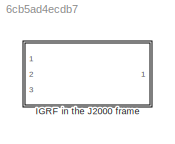
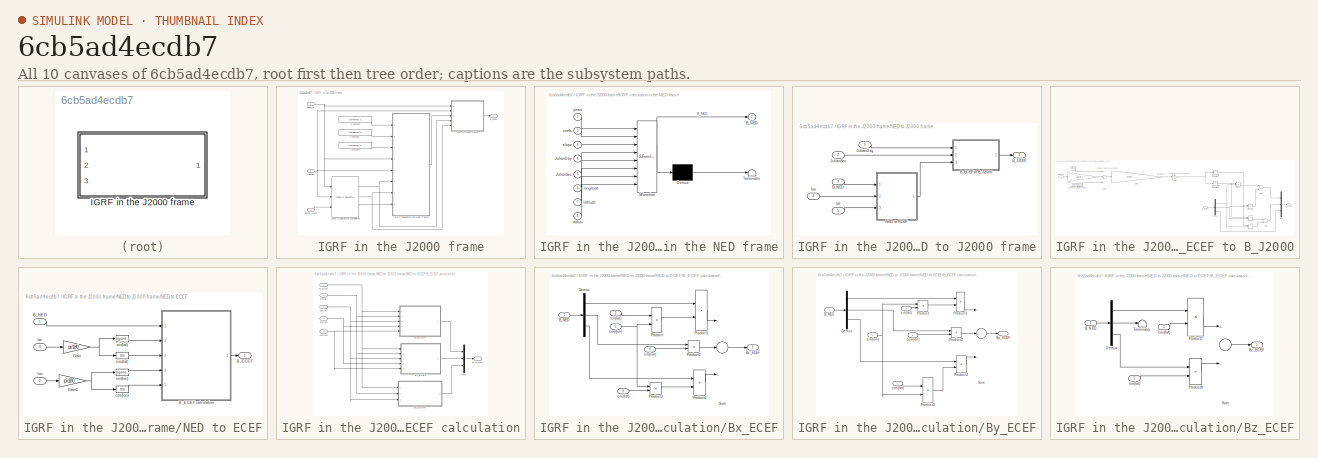
[diagram: thumbnail index - all 10 canvases of the model, root first then tree order]
MODEL slx_6cb5ad4ecdb7
KIND library
BLOCK [SubSystem] IGRF in the J2000 frame
  Ports = [3, 1]
  RequestExecContextInheritance = off
BLOCK [Outport] IGRF in the J2000 frame/B_J2000
  IconDisplay = Port number
BLOCK [Constant] IGRF in the J2000 frame/Constant
  Value = ConfParam.confIGRF.years
BLOCK [Constant] IGRF in the J2000 frame/Constant1
  Value = ConfParam.confIGRF.coefs
BLOCK [Constant] IGRF in the J2000 frame/Constant2
  Value = ConfParam.confIGRF.slope
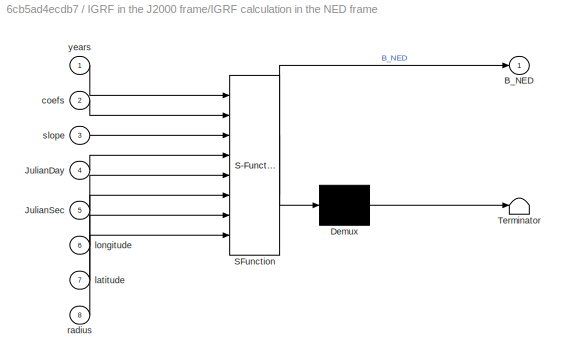
BLOCK [SubSystem] IGRF in the J2000 frame/IGRF calculation in the NED frame
  ErrorFcn = Stateflow.Translate.translate
  PermitHierarchicalResolution = ExplicitOnly
  Ports = [8, 1]
  RequestExecContextInheritance = off
  SFBlockType = MATLAB Function
  TreatAsAtomicUnit = on
BLOCK [Demux] IGRF in the J2000 frame/IGRF calculation in the NED frame/ Demux 
  Outputs = 1
  Ports = [1, 1]
BLOCK [S-Function] IGRF in the J2000 frame/IGRF calculation in the NED frame/ SFunction 
  EnableBusSupport = on
  FunctionName = sf_sfun
  PortCounts = [8 2]
  Ports = [8, 2]
  Tag = Stateflow S-Function IGRF 3
BLOCK [Terminator] IGRF in the J2000 frame/IGRF calculation in the NED frame/ Terminator 
BLOCK [Outport] IGRF in the J2000 frame/IGRF calculation in the NED frame/B_NED
  IconDisplay = Port number
BLOCK [Inport] IGRF in the J2000 frame/IGRF calculation in the NED frame/JulianDay
  IconDisplay = Port number
  Port = 4
BLOCK [Inport] IGRF in the J2000 frame/IGRF calculation in the NED frame/JulianSec
  IconDisplay = Port number
  Port = 5
BLOCK [Inport] IGRF in the J2000 frame/IGRF calculation in the NED frame/coefs
  IconDisplay = Port number
  Port = 2
BLOCK [Inport] IGRF in the J2000 frame/IGRF calculation in the NED frame/latitude
  IconDisplay = Port number
  Port = 7
BLOCK [Inport] IGRF in the J2000 frame/IGRF calculation in the NED frame/longitude
  IconDisplay = Port number
  Port = 6
BLOCK [Inport] IGRF in the J2000 frame/IGRF calculation in the NED frame/radius
  IconDisplay = Port number
  Port = 8
BLOCK [Inport] IGRF in the J2000 frame/IGRF calculation in the NED frame/slope
  IconDisplay = Port number
  Port = 3
BLOCK [Inport] IGRF in the J2000 frame/IGRF calculation in the NED frame/years
  IconDisplay = Port number
BLOCK [Reference] IGRF in the J2000 frame/J2000 to geocentric coordinates  REF=J2000toGeoc/J2000 to geocentric coordinates
  Ports = [3, 3]
  SourceBlock = J2000toGeoc/J2000 to geocentric coordinates
  SourceType = SubSystem
BLOCK [Inport] IGRF in the J2000 frame/JulianDay
  IconDisplay = Port number
BLOCK [Inport] IGRF in the J2000 frame/JulianSec
  IconDisplay = Port number
  Port = 2
BLOCK [SubSystem] IGRF in the J2000 frame/NED to J2000 frame
  Ports = [5, 1]
  RequestExecContextInheritance = off
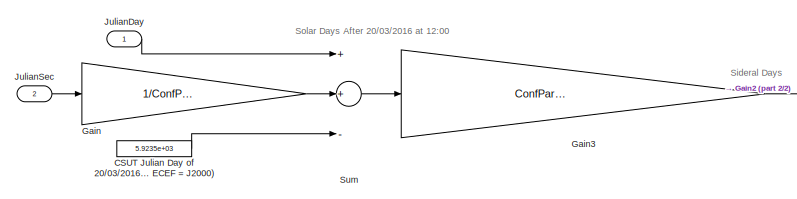
[diagram: IGRF in the J2000 frame/NED to J2000 frame/B_ECEF to B_J2000 - part 1/2, top left region]
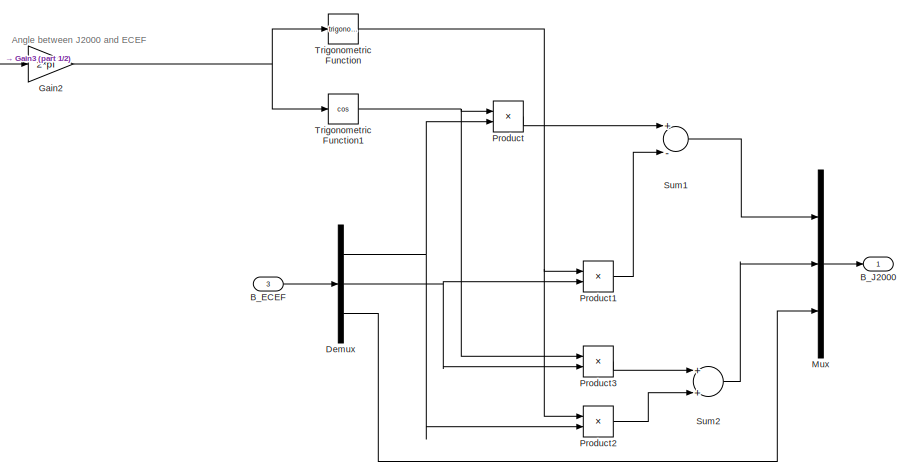
[diagram: IGRF in the J2000 frame/NED to J2000 frame/B_ECEF to B_J2000 - part 2/2, right side, full height]
BLOCK [SubSystem] IGRF in the J2000 frame/NED to J2000 frame/B_ECEF to B_J2000
  Ports = [3, 1]
  RequestExecContextInheritance = off
BLOCK [Inport] IGRF in the J2000 frame/NED to J2000 frame/B_ECEF to B_J2000/B_ECEF
  IconDisplay = Port number
  Port = 3
BLOCK [Outport] IGRF in the J2000 frame/NED to J2000 frame/B_ECEF to B_J2000/B_J2000
  IconDisplay = Port number
BLOCK [Constant] IGRF in the J2000 frame/NED to J2000 frame/B_ECEF to B_J2000/CSUT Julian Day of 20//03//2016 at 12:00 UTC (moment in which ECEF = J2000)
  Value = 5.9235e+03
BLOCK [Demux] IGRF in the J2000 frame/NED to J2000 frame/B_ECEF to B_J2000/Demux
  DisplayOption = bar
  Outputs = 3
  Ports = [1, 3]
BLOCK [Gain] IGRF in the J2000 frame/NED to J2000 frame/B_ECEF to B_J2000/Gain
  Gain = 1/ConfParam.confConst.SolarDay
  OutDataTypeStr = Inherit: Inherit via internal rule
  ParamDataTypeStr = Inherit: Inherit via internal rule
  SaturateOnIntegerOverflow = off
BLOCK [Gain] IGRF in the J2000 frame/NED to J2000 frame/B_ECEF to B_J2000/Gain2
  Gain = 2*pi
  OutDataTypeStr = Inherit: Inherit via internal rule
  ParamDataTypeStr = Inherit: Inherit via internal rule
  SaturateOnIntegerOverflow = off
BLOCK [Gain] IGRF in the J2000 frame/NED to J2000 frame/B_ECEF to B_J2000/Gain3
  Gain = ConfParam.confConst.SolarDay/ConfParam.confConst.SideralDay
  OutDataTypeStr = Inherit: Inherit via internal rule
  ParamDataTypeStr = Inherit: Inherit via internal rule
  SaturateOnIntegerOverflow = off
BLOCK [Inport] IGRF in the J2000 frame/NED to J2000 frame/B_ECEF to B_J2000/JulianDay
  IconDisplay = Port number
BLOCK [Inport] IGRF in the J2000 frame/NED to J2000 frame/B_ECEF to B_J2000/JulianSec
  IconDisplay = Port number
  Port = 2
BLOCK [Mux] IGRF in the J2000 frame/NED to J2000 frame/B_ECEF to B_J2000/Mux
  DisplayOption = bar
  Inputs = 3
  Ports = [3, 1]
BLOCK [Product] IGRF in the J2000 frame/NED to J2000 frame/B_ECEF to B_J2000/Product
  InputSameDT = off
  OutDataTypeStr = Inherit: Inherit via internal rule
  Ports = [2, 1]
  RndMeth = Floor
  SaturateOnIntegerOverflow = off
BLOCK [Product] IGRF in the J2000 frame/NED to J2000 frame/B_ECEF to B_J2000/Product1
  InputSameDT = off
  OutDataTypeStr = Inherit: Inherit via internal rule
  Ports = [2, 1]
  RndMeth = Floor
  SaturateOnIntegerOverflow = off
BLOCK [Product] IGRF in the J2000 frame/NED to J2000 frame/B_ECEF to B_J2000/Product2
  InputSameDT = off
  OutDataTypeStr = Inherit: Inherit via internal rule
  Ports = [2, 1]
  RndMeth = Floor
  SaturateOnIntegerOverflow = off
BLOCK [Product] IGRF in the J2000 frame/NED to J2000 frame/B_ECEF to B_J2000/Product3
  InputSameDT = off
  OutDataTypeStr = Inherit: Inherit via internal rule
  Ports = [2, 1]
  RndMeth = Floor
  SaturateOnIntegerOverflow = off
BLOCK [Sum] IGRF in the J2000 frame/NED to J2000 frame/B_ECEF to B_J2000/Sum
  InputSameDT = off
  Inputs = ++-
  OutDataTypeStr = Inherit: Inherit via internal rule
  Ports = [3, 1]
  SaturateOnIntegerOverflow = off
BLOCK [Sum] IGRF in the J2000 frame/NED to J2000 frame/B_ECEF to B_J2000/Sum1
  InputSameDT = off
  Inputs = +-
  OutDataTypeStr = Inherit: Inherit via internal rule
  Ports = [2, 1]
  SaturateOnIntegerOverflow = off
BLOCK [Sum] IGRF in the J2000 frame/NED to J2000 frame/B_ECEF to B_J2000/Sum2
  InputSameDT = off
  OutDataTypeStr = Inherit: Inherit via internal rule
  Ports = [2, 1]
  SaturateOnIntegerOverflow = off
BLOCK [Trigonometry] IGRF in the J2000 frame/NED to J2000 frame/B_ECEF to B_J2000/Trigonometric Function
  Ports = [1, 1]
BLOCK [Trigonometry] IGRF in the J2000 frame/NED to J2000 frame/B_ECEF to B_J2000/Trigonometric Function1
  Operator = cos
  Ports = [1, 1]
BLOCK [Outport] IGRF in the J2000 frame/NED to J2000 frame/B_J2000
  IconDisplay = Port number
BLOCK [Inport] IGRF in the J2000 frame/NED to J2000 frame/B_NED
  IconDisplay = Port number
  Port = 3
BLOCK [Inport] IGRF in the J2000 frame/NED to J2000 frame/JulianDay
  IconDisplay = Port number
BLOCK [Inport] IGRF in the J2000 frame/NED to J2000 frame/JulianSec
  IconDisplay = Port number
  Port = 2
BLOCK [SubSystem] IGRF in the J2000 frame/NED to J2000 frame/NED to ECEF
  Ports = [3, 1]
  RequestExecContextInheritance = off
BLOCK [Outport] IGRF in the J2000 frame/NED to J2000 frame/NED to ECEF/B_ECEF
  IconDisplay = Port number
BLOCK [SubSystem] IGRF in the J2000 frame/NED to J2000 frame/NED to ECEF/B_ECEF calculation
  Ports = [5, 1]
  RequestExecContextInheritance = off
BLOCK [Outport] IGRF in the J2000 frame/NED to J2000 frame/NED to ECEF/B_ECEF calculation/B_ECEF
  IconDisplay = Port number
BLOCK [Inport] IGRF in the J2000 frame/NED to J2000 frame/NED to ECEF/B_ECEF calculation/B_NED
  IconDisplay = Port number
BLOCK [SubSystem] IGRF in the J2000 frame/NED to J2000 frame/NED to ECEF/B_ECEF calculation/Bx_ECEF
  Ports = [5, 1]
  RequestExecContextInheritance = off
BLOCK [Inport] IGRF in the J2000 frame/NED to J2000 frame/NED to ECEF/B_ECEF calculation/Bx_ECEF/B_NED
  IconDisplay = Port number
BLOCK [Outport] IGRF in the J2000 frame/NED to J2000 frame/NED to ECEF/B_ECEF calculation/Bx_ECEF/Bx_ECEF
  IconDisplay = Port number
BLOCK [Demux] IGRF in the J2000 frame/NED to J2000 frame/NED to ECEF/B_ECEF calculation/Bx_ECEF/Demux
  DisplayOption = bar
  Outputs = 3
  Ports = [1, 3]
BLOCK [Product] IGRF in the J2000 frame/NED to J2000 frame/NED to ECEF/B_ECEF calculation/Bx_ECEF/Product
  InputSameDT = off
  OutDataTypeStr = Inherit: Inherit via internal rule
  Ports = [2, 1]
  RndMeth = Floor
  SaturateOnIntegerOverflow = off
BLOCK [Product] IGRF in the J2000 frame/NED to J2000 frame/NED to ECEF/B_ECEF calculation/Bx_ECEF/Product1
  InputSameDT = off
  OutDataTypeStr = Inherit: Inherit via internal rule
  Ports = [2, 1]
  RndMeth = Floor
  SaturateOnIntegerOverflow = off
BLOCK [Product] IGRF in the J2000 frame/NED to J2000 frame/NED to ECEF/B_ECEF calculation/Bx_ECEF/Product2
  InputSameDT = off
  OutDataTypeStr = Inherit: Inherit via internal rule
  Ports = [2, 1]
  RndMeth = Floor
  SaturateOnIntegerOverflow = off
BLOCK [Product] IGRF in the J2000 frame/NED to J2000 frame/NED to ECEF/B_ECEF calculation/Bx_ECEF/Product3
  InputSameDT = off
  OutDataTypeStr = Inherit: Inherit via internal rule
  Ports = [2, 1]
  RndMeth = Floor
  SaturateOnIntegerOverflow = off
BLOCK [Product] IGRF in the J2000 frame/NED to J2000 frame/NED to ECEF/B_ECEF calculation/Bx_ECEF/Product4
  InputSameDT = off
  OutDataTypeStr = Inherit: Inherit via internal rule
  Ports = [2, 1]
  RndMeth = Floor
  SaturateOnIntegerOverflow = off
BLOCK [Sum] IGRF in the J2000 frame/NED to J2000 frame/NED to ECEF/B_ECEF calculation/Bx_ECEF/Sum
  InputSameDT = off
  Inputs = ---
  OutDataTypeStr = Inherit: Inherit via internal rule
  Ports = [3, 1]
  SaturateOnIntegerOverflow = off
BLOCK [Inport] IGRF in the J2000 frame/NED to J2000 frame/NED to ECEF/B_ECEF calculation/Bx_ECEF/cos(lat)
  IconDisplay = Port number
  Port = 3
BLOCK [Inport] IGRF in the J2000 frame/NED to J2000 frame/NED to ECEF/B_ECEF calculation/Bx_ECEF/cos(lon)
  IconDisplay = Port number
  Port = 5
BLOCK [Inport] IGRF in the J2000 frame/NED to J2000 frame/NED to ECEF/B_ECEF calculation/Bx_ECEF/sin(lat)
  IconDisplay = Port number
  Port = 2
BLOCK [Inport] IGRF in the J2000 frame/NED to J2000 frame/NED to ECEF/B_ECEF calculation/Bx_ECEF/sin(lon)
  IconDisplay = Port number
  Port = 4
BLOCK [SubSystem] IGRF in the J2000 frame/NED to J2000 frame/NED to ECEF/B_ECEF calculation/By_ECEF
  Ports = [5, 1]
  RequestExecContextInheritance = off
BLOCK [Inport] IGRF in the J2000 frame/NED to J2000 frame/NED to ECEF/B_ECEF calculation/By_ECEF/B_NED
  IconDisplay = Port number
BLOCK [Outport] IGRF in the J2000 frame/NED to J2000 frame/NED to ECEF/B_ECEF calculation/By_ECEF/By_ECEF
  IconDisplay = Port number
BLOCK [Demux] IGRF in the J2000 frame/NED to J2000 frame/NED to ECEF/B_ECEF calculation/By_ECEF/Demux
  DisplayOption = bar
  Outputs = 3
  Ports = [1, 3]
BLOCK [Product] IGRF in the J2000 frame/NED to J2000 frame/NED to ECEF/B_ECEF calculation/By_ECEF/Product
  InputSameDT = off
  OutDataTypeStr = Inherit: Inherit via internal rule
  Ports = [2, 1]
  RndMeth = Floor
  SaturateOnIntegerOverflow = off
BLOCK [Product] IGRF in the J2000 frame/NED to J2000 frame/NED to ECEF/B_ECEF calculation/By_ECEF/Product1
  InputSameDT = off
  OutDataTypeStr = Inherit: Inherit via internal rule
  Ports = [2, 1]
  RndMeth = Floor
  SaturateOnIntegerOverflow = off
BLOCK [Product] IGRF in the J2000 frame/NED to J2000 frame/NED to ECEF/B_ECEF calculation/By_ECEF/Product2
  InputSameDT = off
  OutDataTypeStr = Inherit: Inherit via internal rule
  Ports = [2, 1]
  RndMeth = Floor
  SaturateOnIntegerOverflow = off
BLOCK [Product] IGRF in the J2000 frame/NED to J2000 frame/NED to ECEF/B_ECEF calculation/By_ECEF/Product3
  InputSameDT = off
  OutDataTypeStr = Inherit: Inherit via internal rule
  Ports = [2, 1]
  RndMeth = Floor
  SaturateOnIntegerOverflow = off
BLOCK [Product] IGRF in the J2000 frame/NED to J2000 frame/NED to ECEF/B_ECEF calculation/By_ECEF/Product4
  InputSameDT = off
  OutDataTypeStr = Inherit: Inherit via internal rule
  Ports = [2, 1]
  RndMeth = Floor
  SaturateOnIntegerOverflow = off
BLOCK [Sum] IGRF in the J2000 frame/NED to J2000 frame/NED to ECEF/B_ECEF calculation/By_ECEF/Sum
  InputSameDT = off
  Inputs = -+-
  OutDataTypeStr = Inherit: Inherit via internal rule
  Ports = [3, 1]
  SaturateOnIntegerOverflow = off
BLOCK [Inport] IGRF in the J2000 frame/NED to J2000 frame/NED to ECEF/B_ECEF calculation/By_ECEF/cos(lat)
  IconDisplay = Port number
  Port = 3
BLOCK [Inport] IGRF in the J2000 frame/NED to J2000 frame/NED to ECEF/B_ECEF calculation/By_ECEF/cos(lon)
  IconDisplay = Port number
  Port = 5
BLOCK [Inport] IGRF in the J2000 frame/NED to J2000 frame/NED to ECEF/B_ECEF calculation/By_ECEF/sin(lat)
  IconDisplay = Port number
  Port = 2
BLOCK [Inport] IGRF in the J2000 frame/NED to J2000 frame/NED to ECEF/B_ECEF calculation/By_ECEF/sin(lon)
  IconDisplay = Port number
  Port = 4
BLOCK [SubSystem] IGRF in the J2000 frame/NED to J2000 frame/NED to ECEF/B_ECEF calculation/Bz_ECEF
  Ports = [3, 1]
  RequestExecContextInheritance = off
BLOCK [Inport] IGRF in the J2000 frame/NED to J2000 frame/NED to ECEF/B_ECEF calculation/Bz_ECEF/B_NED
  IconDisplay = Port number
BLOCK [Outport] IGRF in the J2000 frame/NED to J2000 frame/NED to ECEF/B_ECEF calculation/Bz_ECEF/Bz_ECEF
  IconDisplay = Port number
BLOCK [Demux] IGRF in the J2000 frame/NED to J2000 frame/NED to ECEF/B_ECEF calculation/Bz_ECEF/Demux
  DisplayOption = bar
  Outputs = 3
  Ports = [1, 3]
BLOCK [Product] IGRF in the J2000 frame/NED to J2000 frame/NED to ECEF/B_ECEF calculation/Bz_ECEF/Product1
  InputSameDT = off
  OutDataTypeStr = Inherit: Inherit via internal rule
  Ports = [2, 1]
  RndMeth = Floor
  SaturateOnIntegerOverflow = off
BLOCK [Product] IGRF in the J2000 frame/NED to J2000 frame/NED to ECEF/B_ECEF calculation/Bz_ECEF/Product4
  InputSameDT = off
  OutDataTypeStr = Inherit: Inherit via internal rule
  Ports = [2, 1]
  RndMeth = Floor
  SaturateOnIntegerOverflow = off
BLOCK [Sum] IGRF in the J2000 frame/NED to J2000 frame/NED to ECEF/B_ECEF calculation/Bz_ECEF/Sum
  InputSameDT = off
  Inputs = +-
  OutDataTypeStr = Inherit: Inherit via internal rule
  Ports = [2, 1]
  SaturateOnIntegerOverflow = off
BLOCK [Terminator] IGRF in the J2000 frame/NED to J2000 frame/NED to ECEF/B_ECEF calculation/Bz_ECEF/Terminator
BLOCK [Inport] IGRF in the J2000 frame/NED to J2000 frame/NED to ECEF/B_ECEF calculation/Bz_ECEF/cos(lat)
  IconDisplay = Port number
  Port = 3
BLOCK [Inport] IGRF in the J2000 frame/NED to J2000 frame/NED to ECEF/B_ECEF calculation/Bz_ECEF/sin(lat)
  IconDisplay = Port number
  Port = 2
BLOCK [Mux] IGRF in the J2000 frame/NED to J2000 frame/NED to ECEF/B_ECEF calculation/Mux
  DisplayOption = bar
  Inputs = 3
  Ports = [3, 1]
BLOCK [Inport] IGRF in the J2000 frame/NED to J2000 frame/NED to ECEF/B_ECEF calculation/cos(lat)
  IconDisplay = Port number
  Port = 3
BLOCK [Inport] IGRF in the J2000 frame/NED to J2000 frame/NED to ECEF/B_ECEF calculation/cos(lon)
  IconDisplay = Port number
  Port = 5
BLOCK [Inport] IGRF in the J2000 frame/NED to J2000 frame/NED to ECEF/B_ECEF calculation/sin(lat)
  IconDisplay = Port number
  Port = 2
BLOCK [Inport] IGRF in the J2000 frame/NED to J2000 frame/NED to ECEF/B_ECEF calculation/sin(lon)
  IconDisplay = Port number
  Port = 4
BLOCK [Inport] IGRF in the J2000 frame/NED to J2000 frame/NED to ECEF/B_NED
  IconDisplay = Port number
BLOCK [Gain] IGRF in the J2000 frame/NED to J2000 frame/NED to ECEF/Gain
  Gain = pi/180
  OutDataTypeStr = Inherit: Inherit via internal rule
  ParamDataTypeStr = Inherit: Inherit via internal rule
  SaturateOnIntegerOverflow = off
BLOCK [Gain] IGRF in the J2000 frame/NED to J2000 frame/NED to ECEF/Gain1
  Gain = pi/180
  OutDataTypeStr = Inherit: Inherit via internal rule
  ParamDataTypeStr = Inherit: Inherit via internal rule
  SaturateOnIntegerOverflow = off
BLOCK [Trigonometry] IGRF in the J2000 frame/NED to J2000 frame/NED to ECEF/cos(lat)
  Operator = cos
  Ports = [1, 1]
BLOCK [Trigonometry] IGRF in the J2000 frame/NED to J2000 frame/NED to ECEF/cos(lon)
  Operator = cos
  Ports = [1, 1]
BLOCK [Inport] IGRF in the J2000 frame/NED to J2000 frame/NED to ECEF/lat
  IconDisplay = Port number
  Port = 3
BLOCK [Inport] IGRF in the J2000 frame/NED to J2000 frame/NED to ECEF/lon
  IconDisplay = Port number
  Port = 2
BLOCK [Trigonometry] IGRF in the J2000 frame/NED to J2000 frame/NED to ECEF/sin(lat)
  Ports = [1, 1]
BLOCK [Trigonometry] IGRF in the J2000 frame/NED to J2000 frame/NED to ECEF/sin(lon)
  Ports = [1, 1]
BLOCK [Inport] IGRF in the J2000 frame/NED to J2000 frame/lat
  IconDisplay = Port number
  Port = 5
BLOCK [Inport] IGRF in the J2000 frame/NED to J2000 frame/lon
  IconDisplay = Port number
  Port = 4
BLOCK [Inport] IGRF in the J2000 frame/SatPos_J2000
  IconDisplay = Port number
  Port = 3
ANNOTATION IGRF in the J2000 frame/NED to J2000 frame/B_ECEF to B_J2000: Angle between J2000 and ECEF
ANNOTATION IGRF in the J2000 frame/NED to J2000 frame/B_ECEF to B_J2000: Sideral Days
ANNOTATION IGRF in the J2000 frame/NED to J2000 frame/B_ECEF to B_J2000: Solar Days After 20/03/2016 at 12:00
LINE IGRF in the J2000 frame/Constant1:1 -> IGRF in the J2000 frame/IGRF calculation in the NED frame:2
LINE IGRF in the J2000 frame/Constant2:1 -> IGRF in the J2000 frame/IGRF calculation in the NED frame:3
LINE IGRF in the J2000 frame/Constant:1 -> IGRF in the J2000 frame/IGRF calculation in the NED frame:1
LINE IGRF in the J2000 frame/IGRF calculation in the NED frame:1 -> IGRF in the J2000 frame/NED to J2000 frame:3
NET IGRF in the J2000 frame/J2000 to geocentric coordinates:1 -> IGRF in the J2000 frame/IGRF calculation in the NED frame:6, IGRF in the J2000 frame/NED to J2000 frame:4
NET IGRF in the J2000 frame/J2000 to geocentric coordinates:2 -> IGRF in the J2000 frame/IGRF calculation in the NED frame:7, IGRF in the J2000 frame/NED to J2000 frame:5
LINE IGRF in the J2000 frame/J2000 to geocentric coordinates:3 -> IGRF in the J2000 frame/IGRF calculation in the NED frame:8
NET IGRF in the J2000 frame/JulianDay:1 -> IGRF in the J2000 frame/IGRF calculation in the NED frame:4, IGRF in the J2000 frame/J2000 to geocentric coordinates:1, IGRF in the J2000 frame/NED to J2000 frame:1
NET IGRF in the J2000 frame/JulianSec:1 -> IGRF in the J2000 frame/IGRF calculation in the NED frame:5, IGRF in the J2000 frame/J2000 to geocentric coordinates:2, IGRF in the J2000 frame/NED to J2000 frame:2
LINE IGRF in the J2000 frame/NED to J2000 frame/B_ECEF to B_J2000/B_ECEF:1 -> IGRF in the J2000 frame/NED to J2000 frame/B_ECEF to B_J2000/Demux:1
LINE IGRF in the J2000 frame/NED to J2000 frame/B_ECEF to B_J2000/CSUT Julian Day of 20//03//2016 at 12:00 UTC (moment in which ECEF = J2000):1 -> IGRF in the J2000 frame/NED to J2000 frame/B_ECEF to B_J2000/Sum:3
NET IGRF in the J2000 frame/NED to J2000 frame/B_ECEF to B_J2000/Demux:1 -> IGRF in the J2000 frame/NED to J2000 frame/B_ECEF to B_J2000/Product2:2, IGRF in the J2000 frame/NED to J2000 frame/B_ECEF to B_J2000/Product:2
NET IGRF in the J2000 frame/NED to J2000 frame/B_ECEF to B_J2000/Demux:2 -> IGRF in the J2000 frame/NED to J2000 frame/B_ECEF to B_J2000/Product1:2, IGRF in the J2000 frame/NED to J2000 frame/B_ECEF to B_J2000/Product3:2
LINE IGRF in the J2000 frame/NED to J2000 frame/B_ECEF to B_J2000/Demux:3 -> IGRF in the J2000 frame/NED to J2000 frame/B_ECEF to B_J2000/Mux:3
NET IGRF in the J2000 frame/NED to J2000 frame/B_ECEF to B_J2000/Gain2:1 -> IGRF in the J2000 frame/NED to J2000 frame/B_ECEF to B_J2000/Trigonometric Function1:1, IGRF in the J2000 frame/NED to J2000 frame/B_ECEF to B_J2000/Trigonometric Function:1
LINE IGRF in the J2000 frame/NED to J2000 frame/B_ECEF to B_J2000/Gain3:1 -> IGRF in the J2000 frame/NED to J2000 frame/B_ECEF to B_J2000/Gain2:1
LINE IGRF in the J2000 frame/NED to J2000 frame/B_ECEF to B_J2000/Gain:1 -> IGRF in the J2000 frame/NED to J2000 frame/B_ECEF to B_J2000/Sum:2
LINE IGRF in the J2000 frame/NED to J2000 frame/B_ECEF to B_J2000/JulianDay:1 -> IGRF in the J2000 frame/NED to J2000 frame/B_ECEF to B_J2000/Sum:1
LINE IGRF in the J2000 frame/NED to J2000 frame/B_ECEF to B_J2000/JulianSec:1 -> IGRF in the J2000 frame/NED to J2000 frame/B_ECEF to B_J2000/Gain:1
LINE IGRF in the J2000 frame/NED to J2000 frame/B_ECEF to B_J2000/Mux:1 -> IGRF in the J2000 frame/NED to J2000 frame/B_ECEF to B_J2000/B_J2000:1
LINE IGRF in the J2000 frame/NED to J2000 frame/B_ECEF to B_J2000/Product1:1 -> IGRF in the J2000 frame/NED to J2000 frame/B_ECEF to B_J2000/Sum1:2
LINE IGRF in the J2000 frame/NED to J2000 frame/B_ECEF to B_J2000/Product2:1 -> IGRF in the J2000 frame/NED to J2000 frame/B_ECEF to B_J2000/Sum2:2
LINE IGRF in the J2000 frame/NED to J2000 frame/B_ECEF to B_J2000/Product3:1 -> IGRF in the J2000 frame/NED to J2000 frame/B_ECEF to B_J2000/Sum2:1
LINE IGRF in the J2000 frame/NED to J2000 frame/B_ECEF to B_J2000/Product:1 -> IGRF in the J2000 frame/NED to J2000 frame/B_ECEF to B_J2000/Sum1:1
LINE IGRF in the J2000 frame/NED to J2000 frame/B_ECEF to B_J2000/Sum1:1 -> IGRF in the J2000 frame/NED to J2000 frame/B_ECEF to B_J2000/Mux:1
LINE IGRF in the J2000 frame/NED to J2000 frame/B_ECEF to B_J2000/Sum2:1 -> IGRF in the J2000 frame/NED to J2000 frame/B_ECEF to B_J2000/Mux:2
LINE IGRF in the J2000 frame/NED to J2000 frame/B_ECEF to B_J2000/Sum:1 -> IGRF in the J2000 frame/NED to J2000 frame/B_ECEF to B_J2000/Gain3:1
NET IGRF in the J2000 frame/NED to J2000 frame/B_ECEF to B_J2000/Trigonometric Function1:1 -> IGRF in the J2000 frame/NED to J2000 frame/B_ECEF to B_J2000/Product3:1, IGRF in the J2000 frame/NED to J2000 frame/B_ECEF to B_J2000/Product:1
NET IGRF in the J2000 frame/NED to J2000 frame/B_ECEF to B_J2000/Trigonometric Function:1 -> IGRF in the J2000 frame/NED to J2000 frame/B_ECEF to B_J2000/Product1:1, IGRF in the J2000 frame/NED to J2000 frame/B_ECEF to B_J2000/Product2:1
LINE IGRF in the J2000 frame/NED to J2000 frame/B_ECEF to B_J2000:1 -> IGRF in the J2000 frame/NED to J2000 frame/B_J2000:1
LINE IGRF in the J2000 frame/NED to J2000 frame/B_NED:1 -> IGRF in the J2000 frame/NED to J2000 frame/NED to ECEF:1
LINE IGRF in the J2000 frame/NED to J2000 frame/JulianDay:1 -> IGRF in the J2000 frame/NED to J2000 frame/B_ECEF to B_J2000:1
LINE IGRF in the J2000 frame/NED to J2000 frame/JulianSec:1 -> IGRF in the J2000 frame/NED to J2000 frame/B_ECEF to B_J2000:2
NET IGRF in the J2000 frame/NED to J2000 frame/NED to ECEF/B_ECEF calculation/B_NED:1 -> IGRF in the J2000 frame/NED to J2000 frame/NED to ECEF/B_ECEF calculation/Bx_ECEF:1, IGRF in the J2000 frame/NED to J2000 frame/NED to ECEF/B_ECEF calculation/By_ECEF:1, IGRF in the J2000 frame/NED to J2000 frame/NED to ECEF/B_ECEF calculation/Bz_ECEF:1
LINE IGRF in the J2000 frame/NED to J2000 frame/NED to ECEF/B_ECEF calculation/Bx_ECEF/B_NED:1 -> IGRF in the J2000 frame/NED to J2000 frame/NED to ECEF/B_ECEF calculation/Bx_ECEF/Demux:1
LINE IGRF in the J2000 frame/NED to J2000 frame/NED to ECEF/B_ECEF calculation/Bx_ECEF/Demux:1 -> IGRF in the J2000 frame/NED to J2000 frame/NED to ECEF/B_ECEF calculation/Bx_ECEF/Product1:1
LINE IGRF in the J2000 frame/NED to J2000 frame/NED to ECEF/B_ECEF calculation/Bx_ECEF/Demux:2 -> IGRF in the J2000 frame/NED to J2000 frame/NED to ECEF/B_ECEF calculation/Bx_ECEF/Product2:1
LINE IGRF in the J2000 frame/NED to J2000 frame/NED to ECEF/B_ECEF calculation/Bx_ECEF/Demux:3 -> IGRF in the J2000 frame/NED to J2000 frame/NED to ECEF/B_ECEF calculation/Bx_ECEF/Product4:1
LINE IGRF in the J2000 frame/NED to J2000 frame/NED to ECEF/B_ECEF calculation/Bx_ECEF/Product1:1 -> IGRF in the J2000 frame/NED to J2000 frame/NED to ECEF/B_ECEF calculation/Bx_ECEF/Sum:1
LINE IGRF in the J2000 frame/NED to J2000 frame/NED to ECEF/B_ECEF calculation/Bx_ECEF/Product2:1 -> IGRF in the J2000 frame/NED to J2000 frame/NED to ECEF/B_ECEF calculation/Bx_ECEF/Sum:2
LINE IGRF in the J2000 frame/NED to J2000 frame/NED to ECEF/B_ECEF calculation/Bx_ECEF/Product3:1 -> IGRF in the J2000 frame/NED to J2000 frame/NED to ECEF/B_ECEF calculation/Bx_ECEF/Product4:2
LINE IGRF in the J2000 frame/NED to J2000 frame/NED to ECEF/B_ECEF calculation/Bx_ECEF/Product4:1 -> IGRF in the J2000 frame/NED to J2000 frame/NED to ECEF/B_ECEF calculation/Bx_ECEF/Sum:3
LINE IGRF in the J2000 frame/NED to J2000 frame/NED to ECEF/B_ECEF calculation/Bx_ECEF/Product:1 -> IGRF in the J2000 frame/NED to J2000 frame/NED to ECEF/B_ECEF calculation/Bx_ECEF/Product1:2
LINE IGRF in the J2000 frame/NED to J2000 frame/NED to ECEF/B_ECEF calculation/Bx_ECEF/Sum:1 -> IGRF in the J2000 frame/NED to J2000 frame/NED to ECEF/B_ECEF calculation/Bx_ECEF/Bx_ECEF:1
LINE IGRF in the J2000 frame/NED to J2000 frame/NED to ECEF/B_ECEF calculation/Bx_ECEF/cos(lat):1 -> IGRF in the J2000 frame/NED to J2000 frame/NED to ECEF/B_ECEF calculation/Bx_ECEF/Product3:2
NET IGRF in the J2000 frame/NED to J2000 frame/NED to ECEF/B_ECEF calculation/Bx_ECEF/cos(lon):1 -> IGRF in the J2000 frame/NED to J2000 frame/NED to ECEF/B_ECEF calculation/Bx_ECEF/Product3:1, IGRF in the J2000 frame/NED to J2000 frame/NED to ECEF/B_ECEF calculation/Bx_ECEF/Product:2
LINE IGRF in the J2000 frame/NED to J2000 frame/NED to ECEF/B_ECEF calculation/Bx_ECEF/sin(lat):1 -> IGRF in the J2000 frame/NED to J2000 frame/NED to ECEF/B_ECEF calculation/Bx_ECEF/Product:1
LINE IGRF in the J2000 frame/NED to J2000 frame/NED to ECEF/B_ECEF calculation/Bx_ECEF/sin(lon):1 -> IGRF in the J2000 frame/NED to J2000 frame/NED to ECEF/B_ECEF calculation/Bx_ECEF/Product2:2
LINE IGRF in the J2000 frame/NED to J2000 frame/NED to ECEF/B_ECEF calculation/Bx_ECEF:1 -> IGRF in the J2000 frame/NED to J2000 frame/NED to ECEF/B_ECEF calculation/Mux:1
LINE IGRF in the J2000 frame/NED to J2000 frame/NED to ECEF/B_ECEF calculation/By_ECEF/B_NED:1 -> IGRF in the J2000 frame/NED to J2000 frame/NED to ECEF/B_ECEF calculation/By_ECEF/Demux:1
LINE IGRF in the J2000 frame/NED to J2000 frame/NED to ECEF/B_ECEF calculation/By_ECEF/Demux:1 -> IGRF in the J2000 frame/NED to J2000 frame/NED to ECEF/B_ECEF calculation/By_ECEF/Product1:1
LINE IGRF in the J2000 frame/NED to J2000 frame/NED to ECEF/B_ECEF calculation/By_ECEF/Demux:2 -> IGRF in the J2000 frame/NED to J2000 frame/NED to ECEF/B_ECEF calculation/By_ECEF/Product2:1
LINE IGRF in the J2000 frame/NED to J2000 frame/NED to ECEF/B_ECEF calculation/By_ECEF/Demux:3 -> IGRF in the J2000 frame/NED to J2000 frame/NED to ECEF/B_ECEF calculation/By_ECEF/Product4:1
LINE IGRF in the J2000 frame/NED to J2000 frame/NED to ECEF/B_ECEF calculation/By_ECEF/Product1:1 -> IGRF in the J2000 frame/NED to J2000 frame/NED to ECEF/B_ECEF calculation/By_ECEF/Sum:1
LINE IGRF in the J2000 frame/NED to J2000 frame/NED to ECEF/B_ECEF calculation/By_ECEF/Product2:1 -> IGRF in the J2000 frame/NED to J2000 frame/NED to ECEF/B_ECEF calculation/By_ECEF/Sum:2
LINE IGRF in the J2000 frame/NED to J2000 frame/NED to ECEF/B_ECEF calculation/By_ECEF/Product3:1 -> IGRF in the J2000 frame/NED to J2000 frame/NED to ECEF/B_ECEF calculation/By_ECEF/Product4:2
LINE IGRF in the J2000 frame/NED to J2000 frame/NED to ECEF/B_ECEF calculation/By_ECEF/Product4:1 -> IGRF in the J2000 frame/NED to J2000 frame/NED to ECEF/B_ECEF calculation/By_ECEF/Sum:3
LINE IGRF in the J2000 frame/NED to J2000 frame/NED to ECEF/B_ECEF calculation/By_ECEF/Product:1 -> IGRF in the J2000 frame/NED to J2000 frame/NED to ECEF/B_ECEF calculation/By_ECEF/Product1:2
LINE IGRF in the J2000 frame/NED to J2000 frame/NED to ECEF/B_ECEF calculation/By_ECEF/Sum:1 -> IGRF in the J2000 frame/NED to J2000 frame/NED to ECEF/B_ECEF calculation/By_ECEF/By_ECEF:1
LINE IGRF in the J2000 frame/NED to J2000 frame/NED to ECEF/B_ECEF calculation/By_ECEF/cos(lat):1 -> IGRF in the J2000 frame/NED to J2000 frame/NED to ECEF/B_ECEF calculation/By_ECEF/Product3:1
LINE IGRF in the J2000 frame/NED to J2000 frame/NED to ECEF/B_ECEF calculation/By_ECEF/cos(lon):1 -> IGRF in the J2000 frame/NED to J2000 frame/NED to ECEF/B_ECEF calculation/By_ECEF/Product2:2
LINE IGRF in the J2000 frame/NED to J2000 frame/NED to ECEF/B_ECEF calculation/By_ECEF/sin(lat):1 -> IGRF in the J2000 frame/NED to J2000 frame/NED to ECEF/B_ECEF calculation/By_ECEF/Product:2
NET IGRF in the J2000 frame/NED to J2000 frame/NED to ECEF/B_ECEF calculation/By_ECEF/sin(lon):1 -> IGRF in the J2000 frame/NED to J2000 frame/NED to ECEF/B_ECEF calculation/By_ECEF/Product3:2, IGRF in the J2000 frame/NED to J2000 frame/NED to ECEF/B_ECEF calculation/By_ECEF/Product:1
LINE IGRF in the J2000 frame/NED to J2000 frame/NED to ECEF/B_ECEF calculation/By_ECEF:1 -> IGRF in the J2000 frame/NED to J2000 frame/NED to ECEF/B_ECEF calculation/Mux:2
LINE IGRF in the J2000 frame/NED to J2000 frame/NED to ECEF/B_ECEF calculation/Bz_ECEF/B_NED:1 -> IGRF in the J2000 frame/NED to J2000 frame/NED to ECEF/B_ECEF calculation/Bz_ECEF/Demux:1
LINE IGRF in the J2000 frame/NED to J2000 frame/NED to ECEF/B_ECEF calculation/Bz_ECEF/Demux:1 -> IGRF in the J2000 frame/NED to J2000 frame/NED to ECEF/B_ECEF calculation/Bz_ECEF/Product1:1
LINE IGRF in the J2000 frame/NED to J2000 frame/NED to ECEF/B_ECEF calculation/Bz_ECEF/Demux:2 -> IGRF in the J2000 frame/NED to J2000 frame/NED to ECEF/B_ECEF calculation/Bz_ECEF/Terminator:1
LINE IGRF in the J2000 frame/NED to J2000 frame/NED to ECEF/B_ECEF calculation/Bz_ECEF/Demux:3 -> IGRF in the J2000 frame/NED to J2000 frame/NED to ECEF/B_ECEF calculation/Bz_ECEF/Product4:1
LINE IGRF in the J2000 frame/NED to J2000 frame/NED to ECEF/B_ECEF calculation/Bz_ECEF/Product1:1 -> IGRF in the J2000 frame/NED to J2000 frame/NED to ECEF/B_ECEF calculation/Bz_ECEF/Sum:1
LINE IGRF in the J2000 frame/NED to J2000 frame/NED to ECEF/B_ECEF calculation/Bz_ECEF/Product4:1 -> IGRF in the J2000 frame/NED to J2000 frame/NED to ECEF/B_ECEF calculation/Bz_ECEF/Sum:2
LINE IGRF in the J2000 frame/NED to J2000 frame/NED to ECEF/B_ECEF calculation/Bz_ECEF/Sum:1 -> IGRF in the J2000 frame/NED to J2000 frame/NED to ECEF/B_ECEF calculation/Bz_ECEF/Bz_ECEF:1
LINE IGRF in the J2000 frame/NED to J2000 frame/NED to ECEF/B_ECEF calculation/Bz_ECEF/cos(lat):1 -> IGRF in the J2000 frame/NED to J2000 frame/NED to ECEF/B_ECEF calculation/Bz_ECEF/Product1:2
LINE IGRF in the J2000 frame/NED to J2000 frame/NED to ECEF/B_ECEF calculation/Bz_ECEF/sin(lat):1 -> IGRF in the J2000 frame/NED to J2000 frame/NED to ECEF/B_ECEF calculation/Bz_ECEF/Product4:2
LINE IGRF in the J2000 frame/NED to J2000 frame/NED to ECEF/B_ECEF calculation/Bz_ECEF:1 -> IGRF in the J2000 frame/NED to J2000 frame/NED to ECEF/B_ECEF calculation/Mux:3
LINE IGRF in the J2000 frame/NED to J2000 frame/NED to ECEF/B_ECEF calculation/Mux:1 -> IGRF in the J2000 frame/NED to J2000 frame/NED to ECEF/B_ECEF calculation/B_ECEF:1
NET IGRF in the J2000 frame/NED to J2000 frame/NED to ECEF/B_ECEF calculation/cos(lat):1 -> IGRF in the J2000 frame/NED to J2000 frame/NED to ECEF/B_ECEF calculation/Bx_ECEF:3, IGRF in the J2000 frame/NED to J2000 frame/NED to ECEF/B_ECEF calculation/By_ECEF:3, IGRF in the J2000 frame/NED to J2000 frame/NED to ECEF/B_ECEF calculation/Bz_ECEF:3
NET IGRF in the J2000 frame/NED to J2000 frame/NED to ECEF/B_ECEF calculation/cos(lon):1 -> IGRF in the J2000 frame/NED to J2000 frame/NED to ECEF/B_ECEF calculation/Bx_ECEF:5, IGRF in the J2000 frame/NED to J2000 frame/NED to ECEF/B_ECEF calculation/By_ECEF:5
NET IGRF in the J2000 frame/NED to J2000 frame/NED to ECEF/B_ECEF calculation/sin(lat):1 -> IGRF in the J2000 frame/NED to J2000 frame/NED to ECEF/B_ECEF calculation/Bx_ECEF:2, IGRF in the J2000 frame/NED to J2000 frame/NED to ECEF/B_ECEF calculation/By_ECEF:2, IGRF in the J2000 frame/NED to J2000 frame/NED to ECEF/B_ECEF calculation/Bz_ECEF:2
NET IGRF in the J2000 frame/NED to J2000 frame/NED to ECEF/B_ECEF calculation/sin(lon):1 -> IGRF in the J2000 frame/NED to J2000 frame/NED to ECEF/B_ECEF calculation/Bx_ECEF:4, IGRF in the J2000 frame/NED to J2000 frame/NED to ECEF/B_ECEF calculation/By_ECEF:4
LINE IGRF in the J2000 frame/NED to J2000 frame/NED to ECEF/B_ECEF calculation:1 -> IGRF in the J2000 frame/NED to J2000 frame/NED to ECEF/B_ECEF:1
LINE IGRF in the J2000 frame/NED to J2000 frame/NED to ECEF/B_NED:1 -> IGRF in the J2000 frame/NED to J2000 frame/NED to ECEF/B_ECEF calculation:1
NET IGRF in the J2000 frame/NED to J2000 frame/NED to ECEF/Gain1:1 -> IGRF in the J2000 frame/NED to J2000 frame/NED to ECEF/cos(lon):1, IGRF in the J2000 frame/NED to J2000 frame/NED to ECEF/sin(lon):1
NET IGRF in the J2000 frame/NED to J2000 frame/NED to ECEF/Gain:1 -> IGRF in the J2000 frame/NED to J2000 frame/NED to ECEF/cos(lat):1, IGRF in the J2000 frame/NED to J2000 frame/NED to ECEF/sin(lat):1
LINE IGRF in the J2000 frame/NED to J2000 frame/NED to ECEF/cos(lat):1 -> IGRF in the J2000 frame/NED to J2000 frame/NED to ECEF/B_ECEF calculation:3
LINE IGRF in the J2000 frame/NED to J2000 frame/NED to ECEF/cos(lon):1 -> IGRF in the J2000 frame/NED to J2000 frame/NED to ECEF/B_ECEF calculation:5
LINE IGRF in the J2000 frame/NED to J2000 frame/NED to ECEF/lat:1 -> IGRF in the J2000 frame/NED to J2000 frame/NED to ECEF/Gain:1
LINE IGRF in the J2000 frame/NED to J2000 frame/NED to ECEF/lon:1 -> IGRF in the J2000 frame/NED to J2000 frame/NED to ECEF/Gain1:1
LINE IGRF in the J2000 frame/NED to J2000 frame/NED to ECEF/sin(lat):1 -> IGRF in the J2000 frame/NED to J2000 frame/NED to ECEF/B_ECEF calculation:2
LINE IGRF in the J2000 frame/NED to J2000 frame/NED to ECEF/sin(lon):1 -> IGRF in the J2000 frame/NED to J2000 frame/NED to ECEF/B_ECEF calculation:4
LINE IGRF in the J2000 frame/NED to J2000 frame/NED to ECEF:1 -> IGRF in the J2000 frame/NED to J2000 frame/B_ECEF to B_J2000:3
LINE IGRF in the J2000 frame/NED to J2000 frame/lat:1 -> IGRF in the J2000 frame/NED to J2000 frame/NED to ECEF:3
LINE IGRF in the J2000 frame/NED to J2000 frame/lon:1 -> IGRF in the J2000 frame/NED to J2000 frame/NED to ECEF:2
LINE IGRF in the J2000 frame/NED to J2000 frame:1 -> IGRF in the J2000 frame/B_J2000:1
LINE IGRF in the J2000 frame/SatPos_J2000:1 -> IGRF in the J2000 frame/J2000 to geocentric coordinates:3
note: NET lines group one-source signal fan-out (src -> all destinations, sorted); 1:1 wires keep LINE
CHART IGRF in the J2000 frame/IGRF calculation in the NED frame states=1 transitions=1
  STATE_LABEL 'eML_blk_kernel()'
  STATE_LABEL "SCRIPT:\nfunction B_NED = igrf(years, coefs, slope, JulianDay, JulianSec, longitude, latitude, radius)\n\n% IGRF Earth's magnetic field from IGRF model.\n%  \n% Calculates the components of the Earth's magnetic field using the\n% International Geomagnetic Reference Field (IGRF) model. \n% \n% Note that the other parameters the IGRF gives can be computed from BX,\n% BY, and BZ as:\n% \n%   Horizonal intensity...<+3608ch>"
